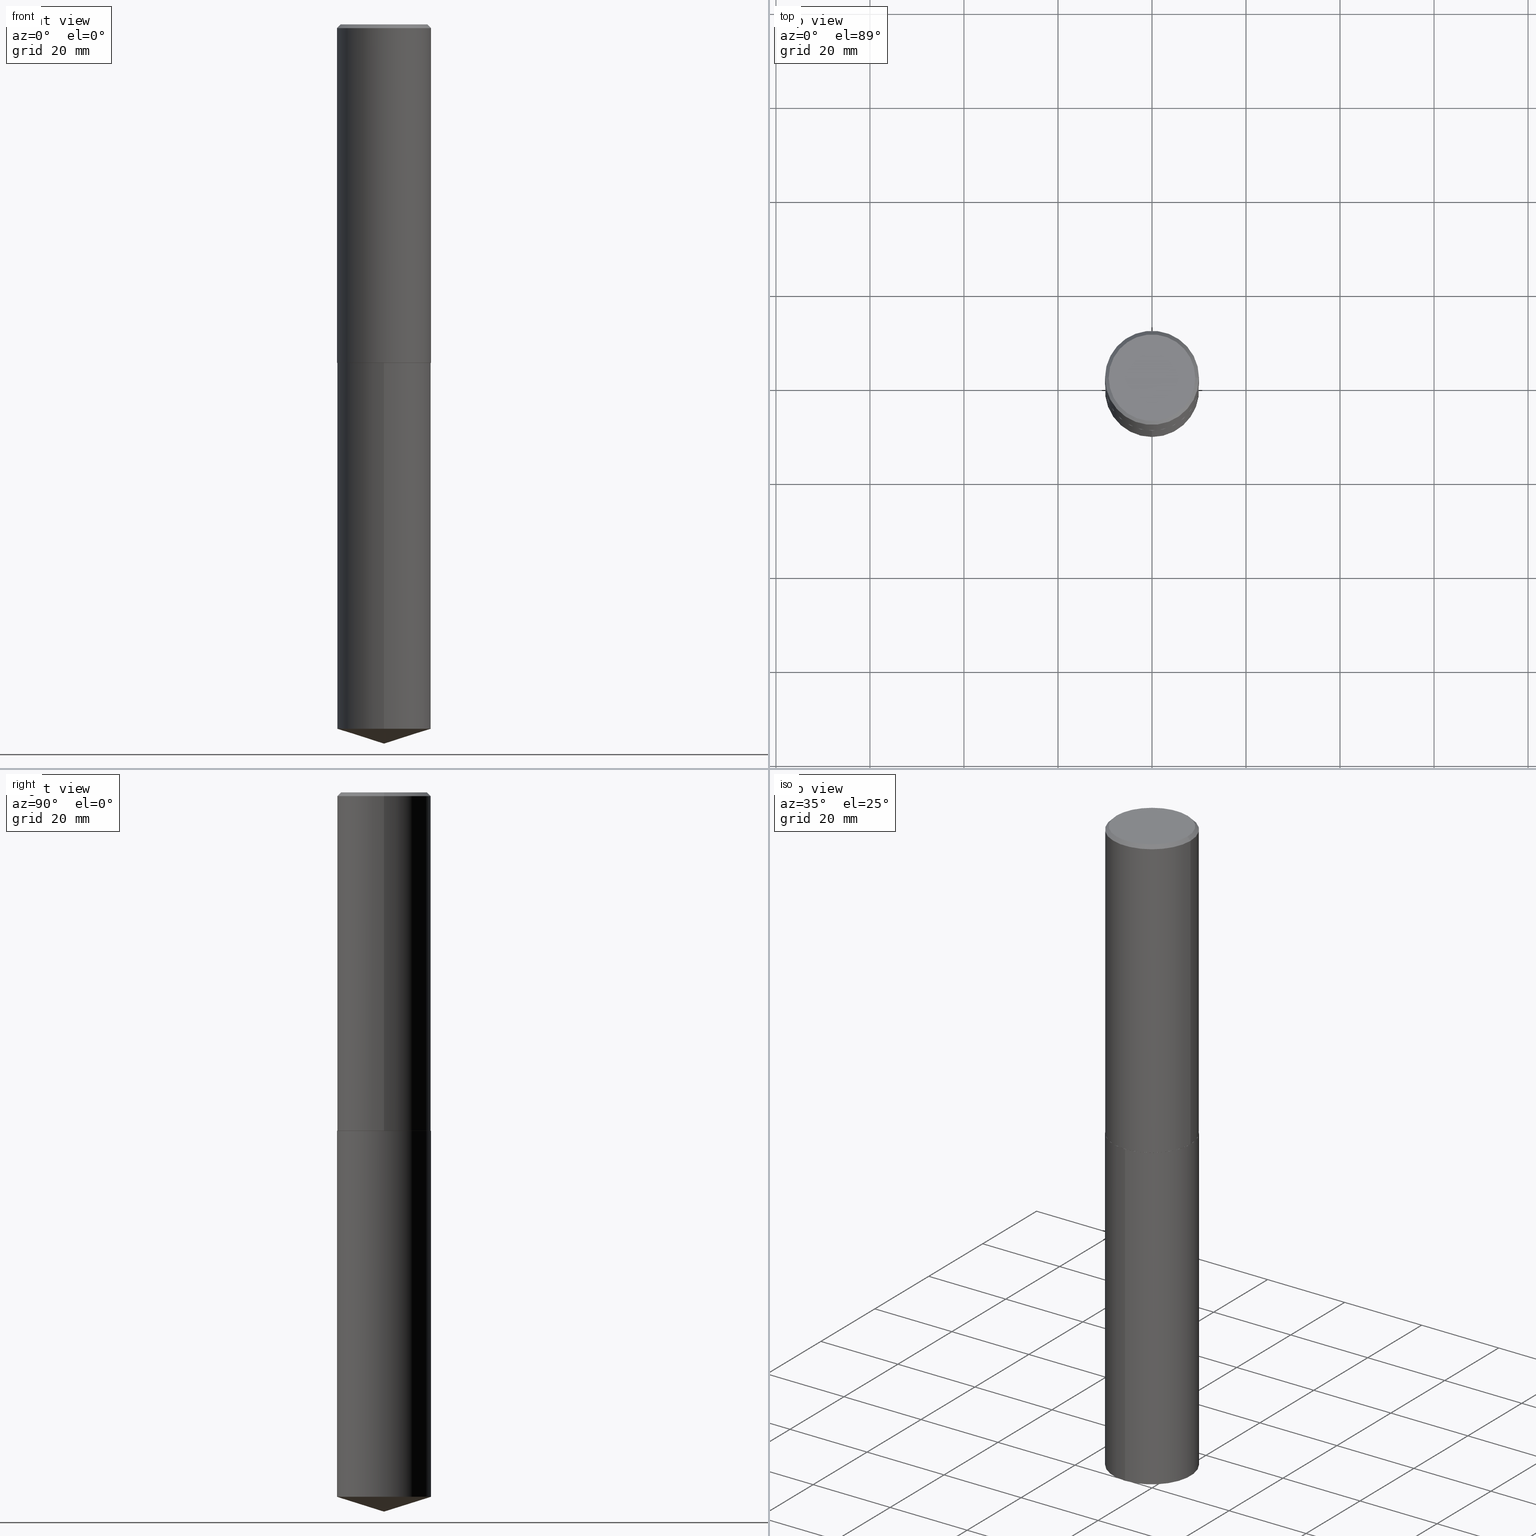
[diagram: canonical four-view strip — front | top / right | iso, engineering-drawing reading convention]
A machine part, canonical four-view strip (front | top / right | iso — engineering-drawing reading convention). The complete STEP part file that produces these views, byte-faithful:
ISO-10303-21;
HEADER;
FILE_DESCRIPTION (( 'STEP AP203' ),
    '1' );
FILE_NAME ('64212.STEP',
    '2024-04-23T10:34:45',
    ( '' ),
    ( '' ),
    'SwSTEP 2.0',
    'SolidWorks 2023',
    '' );
FILE_SCHEMA (( 'CONFIG_CONTROL_DESIGN' ));
ENDSEC;

DATA;
#1 = EDGE_CURVE ( 'NONE', #70, #305, #347, .T. ) ;
#2 = AXIS2_PLACEMENT_3D ( 'NONE', #25, #107, #204 ) ;
#3 = CARTESIAN_POINT ( 'NONE',  ( 6.931925878012386396E-29, -9.896953003084777729E-15, -2.834599999999999120 ) ) ;
#4 = CARTESIAN_POINT ( 'NONE',  ( -1.178467787315321927E-46, 1.682539673960461744E-32, 4.818985154644842843E-18 ) ) ;
#5 = EDGE_CURVE ( 'NONE', #338, #160, #268, .T. ) ;
#6 = LINE ( 'NONE', #276, #207 ) ;
#7 = AXIS2_PLACEMENT_3D ( 'NONE', #233, #289, #194 ) ;
#8 = CIRCLE ( 'NONE', #292, 0.3937000000000004385 ) ;
#9 =( LENGTH_UNIT ( ) NAMED_UNIT ( * ) SI_UNIT ( $, .METRE. ) );
#10 = ORIENTED_EDGE ( 'NONE', *, *, #163, .T. ) ;
#11 = VERTEX_POINT ( 'NONE', #20 ) ;
#12 = DIRECTION ( 'NONE',  ( -6.982962677686265133E-15, -1.000000000000000000, 2.775563112689116301E-15 ) ) ;
#13 = ORIENTED_EDGE ( 'NONE', *, *, #168, .T. ) ;
#14 = AXIS2_PLACEMENT_3D ( 'NONE', #331, #56, #328 ) ;
#15 = CARTESIAN_POINT ( 'NONE',  ( 0.3937000000000004385, -1.264439966862044181E-14, -2.834099999999998953 ) ) ;
#16 =( GEOMETRIC_REPRESENTATION_CONTEXT ( 3 ) GLOBAL_UNCERTAINTY_ASSIGNED_CONTEXT ( ( #263 ) ) GLOBAL_UNIT_ASSIGNED_CONTEXT ( ( #367, #93, #92 ) ) REPRESENTATION_CONTEXT ( 'NONE', 'WORKASPACE' ) );
#17 = ORIENTED_EDGE ( 'NONE', *, *, #387, .T. ) ;
#18 = PERSON_AND_ORGANIZATION ( #197, #325 ) ;
#19 = DIMENSIONAL_EXPONENTS ( 1.000000000000000000, 0.000000000000000000, 0.000000000000000000, 0.000000000000000000, 0.000000000000000000, 0.000000000000000000, 0.000000000000000000 ) ;
#20 = CARTESIAN_POINT ( 'NONE',  ( 0.3937000000000000499, -2.858301198043932317E-15, -0.03125000000000014572 ) ) ;
#21 = CALENDAR_DATE ( 2024, 23, 4 ) ;
#22 = DIRECTION ( 'NONE',  ( -2.445468806185136597E-29, 3.491481338843145583E-15, 1.000000000000000000 ) ) ;
#23 = PERSON_AND_ORGANIZATION_ROLE ( 'design_supplier' ) ;
#24 = ORIENTED_EDGE ( 'NONE', *, *, #118, .F. ) ;
#25 = CARTESIAN_POINT ( 'NONE',  ( -1.178467787315321927E-46, 1.682539673960461744E-32, 4.818985154644842843E-18 ) ) ;
#26 = PRODUCT ( '64212', '64212', '', ( #267 ) ) ;
#27 = CARTESIAN_POINT ( 'NONE',  ( 6.930703143609293595E-29, -9.895207262415355437E-15, -2.834099999999998953 ) ) ;
#28 = AXIS2_PLACEMENT_3D ( 'NONE', #130, #52, #290 ) ;
#29 = VECTOR ( 'NONE', #32, 39.37007874015748143 ) ;
#30 = DIRECTION ( 'NONE',  ( -2.445468806185136597E-29, 3.491481338843145583E-15, 1.000000000000000000 ) ) ;
#31 = FACE_OUTER_BOUND ( 'NONE', #303, .T. ) ;
#32 = DIRECTION ( 'NONE',  ( -0.7071067811865454633, 2.468850131082235367E-15, -0.7071067811865495711 ) ) ;
#33 = DIRECTION ( 'NONE',  ( 0.7071067811865454633, -7.319954787623248157E-15, -0.7071067811865495711 ) ) ;
#34 = ORIENTED_EDGE ( 'NONE', *, *, #363, .F. ) ;
#35 = CIRCLE ( 'NONE', #370, 0.3937000000000000499 ) ;
#36 = CC_DESIGN_APPROVAL ( #365, ( #243 ) ) ;
#37 = LINE ( 'NONE', #274, #371 ) ;
#38 = ORIENTED_EDGE ( 'NONE', *, *, #118, .T. ) ;
#39 = ADVANCED_FACE ( 'NONE', ( #79 ), #231, .T. ) ;
#40 = COORDINATED_UNIVERSAL_TIME_OFFSET ( 5, 0, .BEHIND. ) ;
#41 = ORIENTED_EDGE ( 'NONE', *, *, #387, .F. ) ;
#42 = DIRECTION ( 'NONE',  ( -2.445468806185136597E-29, 3.491481338843145583E-15, 1.000000000000000000 ) ) ;
#43 = ORIENTED_EDGE ( 'NONE', *, *, #210, .F. ) ;
#44 = EDGE_CURVE ( 'NONE', #99, #225, #329, .T. ) ;
#45 = DATE_AND_TIME ( #312, #97 ) ;
#46 = CARTESIAN_POINT ( 'NONE',  ( 6.931925878012386396E-29, -9.896953003084777729E-15, -2.834599999999999120 ) ) ;
#47 = DIRECTION ( 'NONE',  ( -6.982962677686265133E-15, -1.000000000000000000, 4.163344669033674845E-15 ) ) ;
#48 = ADVANCED_FACE ( 'NONE', ( #196 ), #76, .T. ) ;
#49 = APPROVAL_DATE_TIME ( #77, #365 ) ;
#50 = DIRECTION ( 'NONE',  ( 6.776566513254258926E-15, 0.9537169507482290420, 0.3007057995042663467 ) ) ;
#51 = EDGE_LOOP ( 'NONE', ( #43, #123, #226, #340 ) ) ;
#52 = DIRECTION ( 'NONE',  ( -2.444960396146817416E-29, 3.492209410954920967E-15, 1.000000000000000000 ) ) ;
#53 = CARTESIAN_POINT ( 'NONE',  ( 0.000000000000000000, 0.000000000000000000, 0.000000000000000000 ) ) ;
#54 = AXIS2_PLACEMENT_3D ( 'NONE', #306, #72, #244 ) ;
#55 = CARTESIAN_POINT ( 'NONE',  ( -0.3937000000000000499, -2.204751276439585905E-15, -0.03125000000000014572 ) ) ;
#56 = DIRECTION ( 'NONE',  ( 2.438088387897960049E-29, -3.491481338843145188E-15, -1.000000000000000000 ) ) ;
#57 = EDGE_CURVE ( 'NONE', #187, #11, #291, .T. ) ;
#58 = DIRECTION ( 'NONE',  ( 1.000000000000000000, -6.982962677686266711E-15, 4.876176775795935793E-29 ) ) ;
#59 = CIRCLE ( 'NONE', #386, 0.3937000000000000499 ) ;
#60 = AXIS2_PLACEMENT_3D ( 'NONE', #152, #69, #273 ) ;
#61 = CC_DESIGN_PERSON_AND_ORGANIZATION_ASSIGNMENT ( #137, #23, ( #185 ) ) ;
#62 = LINE ( 'NONE', #116, #336 ) ;
#63 = EDGE_CURVE ( 'NONE', #65, #187, #316, .T. ) ;
#64 = DIRECTION ( 'NONE',  ( -2.444960396146817416E-29, 3.492209410954920967E-15, 1.000000000000000000 ) ) ;
#65 = VERTEX_POINT ( 'NONE', #135 ) ;
#66 = ORIENTED_EDGE ( 'NONE', *, *, #352, .T. ) ;
#67 = CIRCLE ( 'NONE', #277, 0.3624500000000000499 ) ;
#68 = ADVANCED_FACE ( 'NONE', ( #109 ), #317, .T. ) ;
#69 = DIRECTION ( 'NONE',  ( 0.000000000000000000, 0.000000000000000000, 1.000000000000000000 ) ) ;
#70 = VERTEX_POINT ( 'NONE', #82 ) ;
#71 = PRODUCT_DEFINITION_SHAPE ( 'NONE', 'NONE',  #243 ) ;
#72 = DIRECTION ( 'NONE',  ( -2.445468806185136597E-29, 3.491481338843145583E-15, 1.000000000000000000 ) ) ;
#73 = ORIENTED_EDGE ( 'NONE', *, *, #369, .F. ) ;
#74 = CARTESIAN_POINT ( 'NONE',  ( 6.931925878012386396E-29, -9.896953003084777729E-15, -2.834599999999999120 ) ) ;
#75 = ORIENTED_EDGE ( 'NONE', *, *, #1, .T. ) ;
#76 = CONICAL_SURFACE ( 'NONE', #214, 0.3937000000000004385, 0.7853981633969702170 ) ;
#77 = DATE_AND_TIME ( #159, #151 ) ;
#78 = EDGE_LOOP ( 'NONE', ( #372, #320 ) ) ;
#79 = FACE_OUTER_BOUND ( 'NONE', #102, .T. ) ;
#80 = DIRECTION ( 'NONE',  ( -2.445468806185136597E-29, 3.491481338843145583E-15, 1.000000000000000000 ) ) ;
#81 = PERSON_AND_ORGANIZATION_ROLE ( 'creator' ) ;
#82 = CARTESIAN_POINT ( 'NONE',  ( 1.472746344222996835E-28, -2.103567260782806321E-14, -6.023600000000000065 ) ) ;
#83 = ORIENTED_EDGE ( 'NONE', *, *, #121, .F. ) ;
#84 = DIRECTION ( 'NONE',  ( 1.000000000000000000, -6.982962677686266711E-15, 4.876156645145296500E-29 ) ) ;
#85 = DIRECTION ( 'NONE',  ( -2.445468806185136597E-29, 3.491481338843145583E-15, 1.000000000000000000 ) ) ;
#86 = VECTOR ( 'NONE', #114, 39.37007874015748854 ) ;
#87 = CIRCLE ( 'NONE', #270, 0.3932000000000007156 ) ;
#88 = DIRECTION ( 'NONE',  ( -2.444960396146817135E-29, 3.492209410954921361E-15, 1.000000000000000000 ) ) ;
#89 = FACE_OUTER_BOUND ( 'NONE', #222, .T. ) ;
#90 = LINE ( 'NONE', #264, #351 ) ;
#91 = AXIS2_PLACEMENT_3D ( 'NONE', #297, #293, #205 ) ;
#92 =( NAMED_UNIT ( * ) SI_UNIT ( $, .STERADIAN. ) SOLID_ANGLE_UNIT ( ) );
#93 =( NAMED_UNIT ( * ) PLANE_ANGLE_UNIT ( ) SI_UNIT ( $, .RADIAN. ) );
#94 = ADVANCED_FACE ( 'NONE', ( #203 ), #361, .T. ) ;
#95 = APPLICATION_PROTOCOL_DEFINITION ( 'international standard', 'config_control_design', 1994, #101 ) ;
#96 = ORIENTED_EDGE ( 'NONE', *, *, #168, .F. ) ;
#97 = LOCAL_TIME ( 6, 34, 45.00000000000000000, #108 ) ;
#98 = CARTESIAN_POINT ( 'NONE',  ( -2.749192406205013402E-15, -0.3937000000000099309, -2.834599999999997788 ) ) ;
#99 = VERTEX_POINT ( 'NONE', #321 ) ;
#100 = DIRECTION ( 'NONE',  ( -2.445468806185136597E-29, 3.491481338843145583E-15, 1.000000000000000000 ) ) ;
#101 = APPLICATION_CONTEXT ( 'configuration controlled 3d designs of mechanical parts and assemblies' ) ;
#102 = EDGE_LOOP ( 'NONE', ( #10, #128, #382, #307 ) ) ;
#103 = DATE_AND_TIME ( #193, #278 ) ;
#104 = ORIENTED_EDGE ( 'NONE', *, *, #195, .T. ) ;
#105 = AXIS2_PLACEMENT_3D ( 'NONE', #154, #42, #245 ) ;
#106 = ORIENTED_EDGE ( 'NONE', *, *, #121, .T. ) ;
#107 = DIRECTION ( 'NONE',  ( -2.445468806185136597E-29, 3.491481338843145583E-15, 1.000000000000000000 ) ) ;
#108 = COORDINATED_UNIVERSAL_TIME_OFFSET ( 5, 0, .BEHIND. ) ;
#109 = FACE_OUTER_BOUND ( 'NONE', #246, .T. ) ;
#110 = CONICAL_SURFACE ( 'NONE', #345, 0.3937000000000000499, 0.7853981633974453924 ) ;
#111 = CC_DESIGN_APPROVAL ( #377, ( #185 ) ) ;
#112 = DIRECTION ( 'NONE',  ( -2.444960396146817416E-29, 3.492209410954920967E-15, 1.000000000000000000 ) ) ;
#113 = EDGE_CURVE ( 'NONE', #160, #338, #191, .T. ) ;
#114 = DIRECTION ( 'NONE',  ( -0.7071067811862092878, 7.493145998869131426E-15, 0.7071067811868855246 ) ) ;
#115 = PLANE ( 'NONE',  #14 ) ;
#116 = CARTESIAN_POINT ( 'NONE',  ( -2.749192406205013402E-15, -0.3937000000000099309, -2.834599999999997788 ) ) ;
#117 = CONICAL_SURFACE ( 'NONE', #176, 0.3937000000000004385, 0.7853981633969702170 ) ;
#118 = EDGE_CURVE ( 'NONE', #314, #65, #170, .T. ) ;
#119 = DIRECTION ( 'NONE',  ( -2.438088387897960049E-29, 3.491481338843145188E-15, 1.000000000000000000 ) ) ;
#120 = DIRECTION ( 'NONE',  ( -2.444960396146817416E-29, 3.492209410954920967E-15, 1.000000000000000000 ) ) ;
#121 = EDGE_CURVE ( 'NONE', #153, #314, #162, .T. ) ;
#122 = FACE_OUTER_BOUND ( 'NONE', #78, .T. ) ;
#123 = ORIENTED_EDGE ( 'NONE', *, *, #369, .T. ) ;
#124 = ORIENTED_EDGE ( 'NONE', *, *, #315, .F. ) ;
#125 = CARTESIAN_POINT ( 'NONE',  ( 6.931925878012386396E-29, -9.896953003084777729E-15, -2.834599999999999120 ) ) ;
#126 = ORIENTED_EDGE ( 'NONE', *, *, #174, .T. ) ;
#127 = SECURITY_CLASSIFICATION_LEVEL ( 'unclassified' ) ;
#128 = ORIENTED_EDGE ( 'NONE', *, *, #210, .T. ) ;
#129 = COORDINATED_UNIVERSAL_TIME_OFFSET ( 5, 0, .BEHIND. ) ;
#130 = CARTESIAN_POINT ( 'NONE',  ( 6.931925878012386396E-29, -9.896953003084777729E-15, -2.834599999999999120 ) ) ;
#131 = AXIS2_PLACEMENT_3D ( 'NONE', #257, #253, #167 ) ;
#132 = APPROVAL_ROLE ( '' ) ;
#133 = ADVANCED_FACE ( 'NONE', ( #148 ), #266, .T. ) ;
#134 = DIRECTION ( 'NONE',  ( 1.000000000000000000, -6.982962677686265922E-15, 0.000000000000000000 ) ) ;
#135 = CARTESIAN_POINT ( 'NONE',  ( -0.3937000000000004385, -7.097800511727838284E-15, -2.834099999999998953 ) ) ;
#136 = ADVANCED_FACE ( 'NONE', ( #143 ), #211, .T. ) ;
#137 = PERSON_AND_ORGANIZATION ( #197, #325 ) ;
#138 = ORIENTED_EDGE ( 'NONE', *, *, #1, .F. ) ;
#139 = VECTOR ( 'NONE', #228, 39.37007874015748143 ) ;
#140 = APPROVAL_PERSON_ORGANIZATION ( #18, #377, #132 ) ;
#141 = DIRECTION ( 'NONE',  ( -1.000000000000000000, 6.982962677686265922E-15, 0.000000000000000000 ) ) ;
#142 = CARTESIAN_POINT ( 'NONE',  ( -0.3937000000000000499, 2.640083614366234510E-15, -0.03125000000000014572 ) ) ;
#143 = FACE_OUTER_BOUND ( 'NONE', #51, .T. ) ;
#144 = PRODUCT_RELATED_PRODUCT_CATEGORY ( 'detail', '', ( #26 ) ) ;
#145 = PLANE ( 'NONE',  #235 ) ;
#146 = AXIS2_PLACEMENT_3D ( 'NONE', #177, #30, #241 ) ;
#147 = CIRCLE ( 'NONE', #54, 0.3932000000000007156 ) ;
#148 = FACE_OUTER_BOUND ( 'NONE', #271, .T. ) ;
#149 = CC_DESIGN_DATE_AND_TIME_ASSIGNMENT ( #202, #343, ( #255 ) ) ;
#150 = VECTOR ( 'NONE', #360, 39.37007874015748854 ) ;
#151 = LOCAL_TIME ( 6, 34, 45.00000000000000000, #40 ) ;
#152 = CARTESIAN_POINT ( 'NONE',  ( 0.000000000000000000, 0.000000000000000000, 0.000000000000000000 ) ) ;
#153 = VERTEX_POINT ( 'NONE', #173 ) ;
#154 = CARTESIAN_POINT ( 'NONE',  ( 7.642090019328588649E-31, -1.091087918388488171E-16, -0.03125000000000014572 ) ) ;
#155 = EDGE_LOOP ( 'NONE', ( #169, #279, #368, #342 ) ) ;
#156 = DIRECTION ( 'NONE',  ( 6.982962677686265922E-15, 1.000000000000000000, -3.492209410954921361E-15 ) ) ;
#157 = EDGE_LOOP ( 'NONE', ( #124, #34 ) ) ;
#158 = CIRCLE ( 'NONE', #105, 0.3937000000000000499 ) ;
#159 = CALENDAR_DATE ( 2024, 23, 4 ) ;
#160 = VERTEX_POINT ( 'NONE', #355 ) ;
#161 = APPROVAL_DATE_TIME ( #45, #223 ) ;
#162 = LINE ( 'NONE', #283, #150 ) ;
#163 = EDGE_CURVE ( 'NONE', #258, #305, #35, .T. ) ;
#164 = CARTESIAN_POINT ( 'NONE',  ( 6.930703143609293595E-29, -9.895207262415355437E-15, -2.834099999999998953 ) ) ;
#165 = DIRECTION ( 'NONE',  ( -2.444960396146817416E-29, 3.492209410954920967E-15, 1.000000000000000000 ) ) ;
#166 = MANIFOLD_SOLID_BREP ( 'Body-Move/Copy2[2]', #309 ) ;
#167 = DIRECTION ( 'NONE',  ( -6.982962677686265133E-15, -1.000000000000000000, 4.163344669033674845E-15 ) ) ;
#168 = EDGE_CURVE ( 'NONE', #225, #99, #67, .T. ) ;
#169 = ORIENTED_EDGE ( 'NONE', *, *, #195, .F. ) ;
#170 = CIRCLE ( 'NONE', #178, 0.3937000000000004385 ) ;
#171 = APPROVAL_PERSON_ORGANIZATION ( #256, #223, #288 ) ;
#172 = DIRECTION ( 'NONE',  ( -6.982962677686265133E-15, -1.000000000000000000, 2.775563112689116301E-15 ) ) ;
#173 = CARTESIAN_POINT ( 'NONE',  ( 0.3932000000000007156, -1.264265392795102425E-14, -2.834599999999999120 ) ) ;
#174 = EDGE_CURVE ( 'NONE', #380, #65, #357, .T. ) ;
#175 = FACE_OUTER_BOUND ( 'NONE', #155, .T. ) ;
#176 = AXIS2_PLACEMENT_3D ( 'NONE', #326, #390, #300 ) ;
#177 = CARTESIAN_POINT ( 'NONE',  ( 0.000000000000000000, 0.000000000000000000, 0.000000000000000000 ) ) ;
#178 = AXIS2_PLACEMENT_3D ( 'NONE', #27, #252, #346 ) ;
#179 = CONICAL_SURFACE ( 'NONE', #91, 0.3937000000000000499, 0.7853981633974453924 ) ;
#180 = CARTESIAN_POINT ( 'NONE',  ( -2.749192406204939249E-15, -0.3937000000000207001, -5.899466866818344535 ) ) ;
#181 = CARTESIAN_POINT ( 'NONE',  ( -0.3932000000000007156, -7.100449738901947907E-15, -2.834599999999999120 ) ) ;
#182 = ORIENTED_EDGE ( 'NONE', *, *, #163, .F. ) ;
#183 = DIRECTION ( 'NONE',  ( 1.000000000000000000, -6.982962677686266711E-15, 0.000000000000000000 ) ) ;
#184 = EDGE_LOOP ( 'NONE', ( #96, #104, #313, #275 ) ) ;
#185 = PRODUCT_DEFINITION_FORMATION_WITH_SPECIFIED_SOURCE ( 'ANY', '', #26, .NOT_KNOWN. ) ;
#186 = APPROVAL_ROLE ( '' ) ;
#187 = VERTEX_POINT ( 'NONE', #55 ) ;
#188 = CARTESIAN_POINT ( 'NONE',  ( 6.930703143609293595E-29, -9.895207262415355437E-15, -2.834099999999998953 ) ) ;
#189 = EDGE_LOOP ( 'NONE', ( #138, #17, #73 ) ) ;
#190 = DIRECTION ( 'NONE',  ( 2.444960396146816855E-29, -3.492209410954921361E-15, -1.000000000000000000 ) ) ;
#191 = CIRCLE ( 'NONE', #28, 0.3937000000000000499 ) ;
#192 = AXIS2_PLACEMENT_3D ( 'NONE', #74, #190, #156 ) ;
#193 = CALENDAR_DATE ( 2024, 23, 4 ) ;
#194 = DIRECTION ( 'NONE',  ( -6.982962677686266711E-15, -1.000000000000000000, 3.500519750498693388E-15 ) ) ;
#195 = EDGE_CURVE ( 'NONE', #225, #11, #262, .T. ) ;
#196 = FACE_OUTER_BOUND ( 'NONE', #366, .T. ) ;
#197 = PERSON ( 'UNSPECIFIED', 'UNSPECIFIED', 'UNSPECIFIED', ('UNSPECIFIED'), ('UNSPECIFIED'), ('UNSPECIFIED') ) ;
#198 = DATE_TIME_ROLE ( 'creation_date' ) ;
#199 = DIRECTION ( 'NONE',  ( 1.000000000000000000, -6.982962677686265922E-15, 0.000000000000000000 ) ) ;
#200 = CC_DESIGN_SECURITY_CLASSIFICATION ( #255, ( #185 ) ) ;
#201 = ADVANCED_FACE ( 'NONE', ( #31 ), #327, .T. ) ;
#202 = DATE_AND_TIME ( #381, #330 ) ;
#203 = FACE_OUTER_BOUND ( 'NONE', #189, .T. ) ;
#204 = DIRECTION ( 'NONE',  ( 1.000000000000000000, -6.982962677686266711E-15, 4.876156645145296500E-29 ) ) ;
#205 = DIRECTION ( 'NONE',  ( -1.000000000000000000, 6.982962677686265922E-15, 0.000000000000000000 ) ) ;
#206 = AXIS2_PLACEMENT_3D ( 'NONE', #242, #120, #295 ) ;
#207 = VECTOR ( 'NONE', #302, 39.37007874015748854 ) ;
#208 = DIRECTION ( 'NONE',  ( -2.444960396146817135E-29, 3.492209410954921361E-15, 1.000000000000000000 ) ) ;
#209 = CC_DESIGN_PERSON_AND_ORGANIZATION_ASSIGNMENT ( #282, #227, ( #185 ) ) ;
#210 = EDGE_CURVE ( 'NONE', #305, #160, #90, .T. ) ;
#211 = CYLINDRICAL_SURFACE ( 'NONE', #206, 0.3937000000000000499 ) ;
#212 = ADVANCED_FACE ( 'NONE', ( #89 ), #117, .T. ) ;
#213 = CARTESIAN_POINT ( 'NONE',  ( -0.3937000000000004385, -7.097800511727838284E-15, -2.834099999999998953 ) ) ;
#214 = AXIS2_PLACEMENT_3D ( 'NONE', #164, #22, #134 ) ;
#215 = ADVANCED_FACE ( 'NONE', ( #216 ), #115, .F. ) ;
#216 = FACE_OUTER_BOUND ( 'NONE', #308, .T. ) ;
#217 = CC_DESIGN_APPROVAL ( #223, ( #255 ) ) ;
#218 = ORIENTED_EDGE ( 'NONE', *, *, #315, .T. ) ;
#219 = ORIENTED_EDGE ( 'NONE', *, *, #174, .F. ) ;
#220 = PERSON_AND_ORGANIZATION ( #197, #325 ) ;
#221 = AXIS2_PLACEMENT_3D ( 'NONE', #53, #85, #58 ) ;
#222 = EDGE_LOOP ( 'NONE', ( #219, #310, #106, #350 ) ) ;
#223 = APPROVAL ( #259, 'UNSPECIFIED' ) ;
#224 = APPLICATION_PROTOCOL_DEFINITION ( 'international standard', 'config_control_design', 1994, #373 ) ;
#225 = VERTEX_POINT ( 'NONE', #354 ) ;
#226 = ORIENTED_EDGE ( 'NONE', *, *, #239, .T. ) ;
#227 = PERSON_AND_ORGANIZATION_ROLE ( 'creator' ) ;
#228 = DIRECTION ( 'NONE',  ( -2.445468806185136877E-29, 3.491481338843145188E-15, 1.000000000000000000 ) ) ;
#229 = PERSON_AND_ORGANIZATION_ROLE ( 'classification_officer' ) ;
#230 = ORIENTED_EDGE ( 'NONE', *, *, #44, .T. ) ;
#231 = CYLINDRICAL_SURFACE ( 'NONE', #131, 0.3937000000000000499 ) ;
#232 = PERSON_AND_ORGANIZATION ( #197, #325 ) ;
#233 = CARTESIAN_POINT ( 'NONE',  ( -8.152937873154223485E-28, 1.164549506717941776E-13, 33.34647874015747959 ) ) ;
#234 = APPROVAL_PERSON_ORGANIZATION ( #220, #365, #186 ) ;
#235 = AXIS2_PLACEMENT_3D ( 'NONE', #3, #119, #359 ) ;
#236 = ORIENTED_EDGE ( 'NONE', *, *, #63, .T. ) ;
#237 = FACE_OUTER_BOUND ( 'NONE', #184, .T. ) ;
#238 = FACE_OUTER_BOUND ( 'NONE', #157, .T. ) ;
#239 = EDGE_CURVE ( 'NONE', #258, #338, #62, .T. ) ;
#240 = DIRECTION ( 'NONE',  ( -2.445468806185136597E-29, 3.491481338843145583E-15, 1.000000000000000000 ) ) ;
#241 = DIRECTION ( 'NONE',  ( 1.000000000000000000, -6.982962677686266711E-15, 4.876176775795935793E-29 ) ) ;
#242 = CARTESIAN_POINT ( 'NONE',  ( 6.931925878012386396E-29, -9.896953003084777729E-15, -2.834599999999999120 ) ) ;
#243 = PRODUCT_DEFINITION ( 'UNKNOWN', '', #185, #335 ) ;
#244 = DIRECTION ( 'NONE',  ( 1.000000000000000000, -6.982962677686266711E-15, 0.000000000000000000 ) ) ;
#245 = DIRECTION ( 'NONE',  ( 1.000000000000000000, -6.982962677686265922E-15, 0.000000000000000000 ) ) ;
#246 = EDGE_LOOP ( 'NONE', ( #41, #75, #182 ) ) ;
#247 = PERSON_AND_ORGANIZATION ( #197, #325 ) ;
#248 = ORIENTED_EDGE ( 'NONE', *, *, #57, .F. ) ;
#249 = DIRECTION ( 'NONE',  ( -2.445468806185136597E-29, 3.491481338843145583E-15, 1.000000000000000000 ) ) ;
#250 = ORIENTED_EDGE ( 'NONE', *, *, #63, .F. ) ;
#251 = COORDINATED_UNIVERSAL_TIME_OFFSET ( 5, 0, .BEHIND. ) ;
#252 = DIRECTION ( 'NONE',  ( -2.445468806185136597E-29, 3.491481338843145583E-15, 1.000000000000000000 ) ) ;
#253 = DIRECTION ( 'NONE',  ( -2.444960396146817416E-29, 3.492209410954920967E-15, 1.000000000000000000 ) ) ;
#254 = CLOSED_SHELL ( 'NONE', ( #39, #68, #94, #136, #323 ) ) ;
#255 = SECURITY_CLASSIFICATION ( '', '', #127 ) ;
#256 = PERSON_AND_ORGANIZATION ( #197, #325 ) ;
#257 = CARTESIAN_POINT ( 'NONE',  ( 6.931925878012386396E-29, -9.896953003084777729E-15, -2.834599999999999120 ) ) ;
#258 = VERTEX_POINT ( 'NONE', #180 ) ;
#259 = APPROVAL_STATUS ( 'not_yet_approved' ) ;
#260 = CARTESIAN_POINT ( 'NONE',  ( -8.152937873154223485E-28, 1.164549506717941776E-13, 33.34647874015747959 ) ) ;
#261 = CARTESIAN_POINT ( 'NONE',  ( 1.442540398684582544E-28, -2.060010991871172801E-14, -5.899466866818345423 ) ) ;
#262 = LINE ( 'NONE', #388, #298 ) ;
#263 = UNCERTAINTY_MEASURE_WITH_UNIT (LENGTH_MEASURE( 1.000000000000000082E-05 ), #367, 'distance_accuracy_value', 'NONE');
#264 = CARTESIAN_POINT ( 'NONE',  ( 2.797406750687583417E-15, 0.3936999999999901134, -2.834600000000000897 ) ) ;
#265 = DIRECTION ( 'NONE',  ( 2.445468806185136597E-29, -3.491481338843145583E-15, -1.000000000000000000 ) ) ;
#266 = CYLINDRICAL_SURFACE ( 'NONE', #146, 0.3937000000000002164 ) ;
#267 = MECHANICAL_CONTEXT ( 'NONE', #373, 'mechanical' ) ;
#268 = CIRCLE ( 'NONE', #285, 0.3937000000000000499 ) ;
#269 = CARTESIAN_POINT ( 'NONE',  ( 1.442540398684582544E-28, -2.060010991871172801E-14, -5.899466866818345423 ) ) ;
#270 = AXIS2_PLACEMENT_3D ( 'NONE', #125, #249, #183 ) ;
#271 = EDGE_LOOP ( 'NONE', ( #250, #378, #66, #248 ) ) ;
#272 = ADVANCED_FACE ( 'NONE', ( #175 ), #110, .T. ) ;
#273 = DIRECTION ( 'NONE',  ( 1.000000000000000000, 0.000000000000000000, 0.000000000000000000 ) ) ;
#274 = CARTESIAN_POINT ( 'NONE',  ( 0.3937000000000002164, -2.749192406205084794E-15, 1.919750796630861012E-29 ) ) ;
#275 = ORIENTED_EDGE ( 'NONE', *, *, #296, .F. ) ;
#276 = CARTESIAN_POINT ( 'NONE',  ( 1.472746344222996835E-28, -2.103567260782806321E-14, -6.023600000000000065 ) ) ;
#277 = AXIS2_PLACEMENT_3D ( 'NONE', #4, #240, #84 ) ;
#278 = LOCAL_TIME ( 6, 34, 45.00000000000000000, #251 ) ;
#279 = ORIENTED_EDGE ( 'NONE', *, *, #44, .F. ) ;
#280 = ADVANCED_FACE ( 'NONE', ( #237 ), #179, .T. ) ;
#281 = PERSON_AND_ORGANIZATION ( #197, #325 ) ;
#282 = PERSON_AND_ORGANIZATION ( #197, #325 ) ;
#283 = CARTESIAN_POINT ( 'NONE',  ( 0.3937000000000004385, -1.264439966862044181E-14, -2.834099999999998953 ) ) ;
#284 = ORIENTED_EDGE ( 'NONE', *, *, #352, .F. ) ;
#285 = AXIS2_PLACEMENT_3D ( 'NONE', #46, #165, #47 ) ;
#286 = CC_DESIGN_PERSON_AND_ORGANIZATION_ASSIGNMENT ( #232, #229, ( #255 ) ) ;
#287 = CARTESIAN_POINT ( 'NONE',  ( -0.3937000000000002164, 2.797406750687515970E-15, -1.936584745033357576E-29 ) ) ;
#288 = APPROVAL_ROLE ( '' ) ;
#289 = DIRECTION ( 'NONE',  ( -2.444960396146817416E-29, 3.492209410954920967E-15, 1.000000000000000000 ) ) ;
#290 = DIRECTION ( 'NONE',  ( -6.982962677686265133E-15, -1.000000000000000000, 4.163344669033674845E-15 ) ) ;
#291 = CIRCLE ( 'NONE', #324, 0.3937000000000000499 ) ;
#292 = AXIS2_PLACEMENT_3D ( 'NONE', #188, #100, #364 ) ;
#293 = DIRECTION ( 'NONE',  ( 2.445468806185136597E-29, -3.491481338843145583E-15, -1.000000000000000000 ) ) ;
#294 = CC_DESIGN_PERSON_AND_ORGANIZATION_ASSIGNMENT ( #281, #81, ( #243 ) ) ;
#295 = DIRECTION ( 'NONE',  ( -6.982962677686265133E-15, -1.000000000000000000, 4.163344669033674845E-15 ) ) ;
#296 = EDGE_CURVE ( 'NONE', #99, #187, #322, .T. ) ;
#297 = CARTESIAN_POINT ( 'NONE',  ( 7.642090019328588649E-31, -1.091087918388488171E-16, -0.03125000000000014572 ) ) ;
#298 = VECTOR ( 'NONE', #33, 39.37007874015748143 ) ;
#299 = MANIFOLD_SOLID_BREP ( 'Body-Move/Copy2[1]', #254 ) ;
#300 = DIRECTION ( 'NONE',  ( 1.000000000000000000, -6.982962677686265922E-15, 0.000000000000000000 ) ) ;
#301 = CARTESIAN_POINT ( 'NONE',  ( 7.642090019328588649E-31, -1.091087918388488171E-16, -0.03125000000000014572 ) ) ;
#302 = DIRECTION ( 'NONE',  ( -6.659769872151633666E-15, -0.9537169507482269326, 0.3007057995042729526 ) ) ;
#303 = EDGE_LOOP ( 'NONE', ( #38, #236, #376, #284 ) ) ;
#304 = ADVANCED_FACE ( 'NONE', ( #238 ), #145, .F. ) ;
#305 = VERTEX_POINT ( 'NONE', #341 ) ;
#306 = CARTESIAN_POINT ( 'NONE',  ( 6.931925878012386396E-29, -9.896953003084777729E-15, -2.834599999999999120 ) ) ;
#307 = ORIENTED_EDGE ( 'NONE', *, *, #239, .F. ) ;
#308 = EDGE_LOOP ( 'NONE', ( #230, #13 ) ) ;
#309 = CLOSED_SHELL ( 'NONE', ( #280, #201, #48, #304, #212, #133, #272, #215 ) ) ;
#310 = ORIENTED_EDGE ( 'NONE', *, *, #363, .T. ) ;
#311 = EDGE_CURVE ( 'NONE', #11, #187, #158, .T. ) ;
#312 = CALENDAR_DATE ( 2024, 23, 4 ) ;
#313 = ORIENTED_EDGE ( 'NONE', *, *, #311, .T. ) ;
#314 = VERTEX_POINT ( 'NONE', #15 ) ;
#315 = EDGE_CURVE ( 'NONE', #153, #380, #147, .T. ) ;
#316 = LINE ( 'NONE', #287, #139 ) ;
#317 = CONICAL_SURFACE ( 'NONE', #7, 124.8659371009154597, 1.265363707695892570 ) ;
#318 = LOCAL_TIME ( 6, 34, 45.00000000000000000, #129 ) ;
#319 = APPROVAL_STATUS ( 'not_yet_approved' ) ;
#320 = ORIENTED_EDGE ( 'NONE', *, *, #113, .T. ) ;
#321 = CARTESIAN_POINT ( 'NONE',  ( -0.3624500000000000499, 2.585529218446811143E-15, 4.818985154626951724E-18 ) ) ;
#322 = LINE ( 'NONE', #142, #29 ) ;
#323 = ADVANCED_FACE ( 'NONE', ( #122 ), #332, .F. ) ;
#324 = AXIS2_PLACEMENT_3D ( 'NONE', #349, #80, #199 ) ;
#325 = ORGANIZATION ( 'UNSPECIFIED', 'UNSPECIFIED', '' ) ;
#326 = CARTESIAN_POINT ( 'NONE',  ( 6.930703143609293595E-29, -9.895207262415355437E-15, -2.834099999999998953 ) ) ;
#327 = CYLINDRICAL_SURFACE ( 'NONE', #221, 0.3937000000000002164 ) ;
#328 = DIRECTION ( 'NONE',  ( -1.000000000000000000, 6.982962677686265922E-15, -4.876176775795935793E-29 ) ) ;
#329 = CIRCLE ( 'NONE', #2, 0.3624500000000000499 ) ;
#330 = LOCAL_TIME ( 6, 34, 45.00000000000000000, #375 ) ;
#331 = CARTESIAN_POINT ( 'NONE',  ( -5.892338936576609633E-47, 8.412698369802308719E-33, 2.409492577322421421E-18 ) ) ;
#332 = PLANE ( 'NONE',  #192 ) ;
#333 = EDGE_CURVE ( 'NONE', #65, #314, #8, .T. ) ;
#334 = DIRECTION ( 'NONE',  ( -2.445468806185136877E-29, 3.491481338843145188E-15, 1.000000000000000000 ) ) ;
#335 = DESIGN_CONTEXT ( 'detailed design', #101, 'design' ) ;
#336 = VECTOR ( 'NONE', #88, 39.37007874015748143 ) ;
#337 = APPROVAL_STATUS ( 'not_yet_approved' ) ;
#338 = VERTEX_POINT ( 'NONE', #98 ) ;
#339 = PERSON_AND_ORGANIZATION_ROLE ( 'design_owner' ) ;
#340 = ORIENTED_EDGE ( 'NONE', *, *, #113, .F. ) ;
#341 = CARTESIAN_POINT ( 'NONE',  ( 2.797406750687658754E-15, 0.3936999999999794553, -5.899466866818346311 ) ) ;
#342 = ORIENTED_EDGE ( 'NONE', *, *, #57, .T. ) ;
#343 = DATE_TIME_ROLE ( 'classification_date' ) ;
#344 = VECTOR ( 'NONE', #50, 39.37007874015748143 ) ;
#345 = AXIS2_PLACEMENT_3D ( 'NONE', #301, #265, #141 ) ;
#346 = DIRECTION ( 'NONE',  ( 1.000000000000000000, -6.982962677686265922E-15, 0.000000000000000000 ) ) ;
#347 = LINE ( 'NONE', #384, #344 ) ;
#348 = APPROVAL_DATE_TIME ( #103, #377 ) ;
#349 = CARTESIAN_POINT ( 'NONE',  ( 7.642090019328588649E-31, -1.091087918388488171E-16, -0.03125000000000014572 ) ) ;
#350 = ORIENTED_EDGE ( 'NONE', *, *, #333, .F. ) ;
#351 = VECTOR ( 'NONE', #208, 39.37007874015748143 ) ;
#352 = EDGE_CURVE ( 'NONE', #314, #11, #37, .T. ) ;
#353 = DIRECTION ( 'NONE',  ( -6.982962677686266711E-15, -1.000000000000000000, 3.500519750498693388E-15 ) ) ;
#354 = CARTESIAN_POINT ( 'NONE',  ( 0.3624500000000000499, -2.648337176426896411E-15, 4.818985154662952747E-18 ) ) ;
#355 = CARTESIAN_POINT ( 'NONE',  ( 2.797406750687658754E-15, 0.3936999999999901134, -2.834600000000000897 ) ) ;
#356 = ADVANCED_BREP_SHAPE_REPRESENTATION ( '64212', ( #299, #166, #60 ), #16 ) ;
#357 = LINE ( 'NONE', #213, #86 ) ;
#358 = CC_DESIGN_PERSON_AND_ORGANIZATION_ASSIGNMENT ( #247, #339, ( #26 ) ) ;
#359 = DIRECTION ( 'NONE',  ( 1.000000000000000000, -6.982962677686265922E-15, 4.876176775795935793E-29 ) ) ;
#360 = DIRECTION ( 'NONE',  ( 0.7071067811862092878, -2.468850131078715470E-15, 0.7071067811868855246 ) ) ;
#361 = CONICAL_SURFACE ( 'NONE', #385, 124.8659371009154597, 1.265363707695892570 ) ;
#362 = CC_DESIGN_DATE_AND_TIME_ASSIGNMENT ( #383, #198, ( #243 ) ) ;
#363 = EDGE_CURVE ( 'NONE', #380, #153, #87, .T. ) ;
#364 = DIRECTION ( 'NONE',  ( 1.000000000000000000, -6.982962677686265922E-15, 0.000000000000000000 ) ) ;
#365 = APPROVAL ( #337, 'UNSPECIFIED' ) ;
#366 = EDGE_LOOP ( 'NONE', ( #218, #126, #24, #83 ) ) ;
#367 =( CONVERSION_BASED_UNIT ( 'INCH', #374 ) LENGTH_UNIT ( ) NAMED_UNIT ( #19 ) );
#368 = ORIENTED_EDGE ( 'NONE', *, *, #296, .T. ) ;
#369 = EDGE_CURVE ( 'NONE', #305, #258, #59, .T. ) ;
#370 = AXIS2_PLACEMENT_3D ( 'NONE', #261, #389, #172 ) ;
#371 = VECTOR ( 'NONE', #334, 39.37007874015748143 ) ;
#372 = ORIENTED_EDGE ( 'NONE', *, *, #5, .T. ) ;
#373 = APPLICATION_CONTEXT ( 'configuration controlled 3d designs of mechanical parts and assemblies' ) ;
#374 = LENGTH_MEASURE_WITH_UNIT ( LENGTH_MEASURE( 0.02539999999999999897 ), #9 );
#375 = COORDINATED_UNIVERSAL_TIME_OFFSET ( 5, 0, .BEHIND. ) ;
#376 = ORIENTED_EDGE ( 'NONE', *, *, #311, .F. ) ;
#377 = APPROVAL ( #319, 'UNSPECIFIED' ) ;
#378 = ORIENTED_EDGE ( 'NONE', *, *, #333, .T. ) ;
#379 = SHAPE_DEFINITION_REPRESENTATION ( #71, #356 ) ;
#380 = VERTEX_POINT ( 'NONE', #181 ) ;
#381 = CALENDAR_DATE ( 2024, 23, 4 ) ;
#382 = ORIENTED_EDGE ( 'NONE', *, *, #5, .F. ) ;
#383 = DATE_AND_TIME ( #21, #318 ) ;
#384 = CARTESIAN_POINT ( 'NONE',  ( 1.473037099459667008E-28, -2.103154502141198455E-14, -6.023600000000000065 ) ) ;
#385 = AXIS2_PLACEMENT_3D ( 'NONE', #260, #112, #353 ) ;
#386 = AXIS2_PLACEMENT_3D ( 'NONE', #269, #64, #12 ) ;
#387 = EDGE_CURVE ( 'NONE', #70, #258, #6, .T. ) ;
#388 = CARTESIAN_POINT ( 'NONE',  ( 0.3937000000000000499, -2.810086853561501142E-15, -0.03125000000000014572 ) ) ;
#389 = DIRECTION ( 'NONE',  ( -2.444960396146817416E-29, 3.492209410954920967E-15, 1.000000000000000000 ) ) ;
#390 = DIRECTION ( 'NONE',  ( -2.445468806185136597E-29, 3.491481338843145583E-15, 1.000000000000000000 ) ) ;
ENDSEC;
END-ISO-10303-21;
